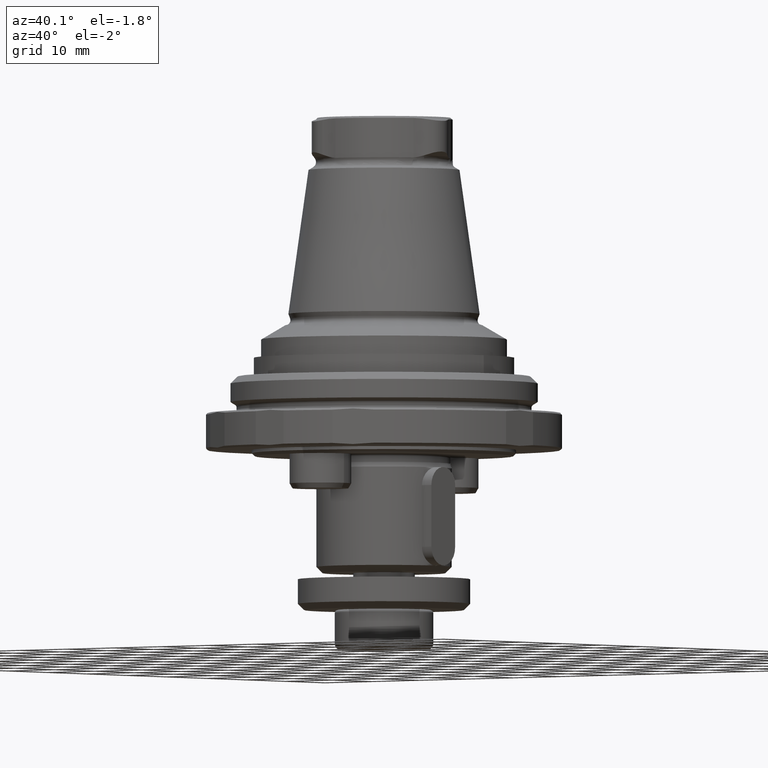
[diagram: clean part render]
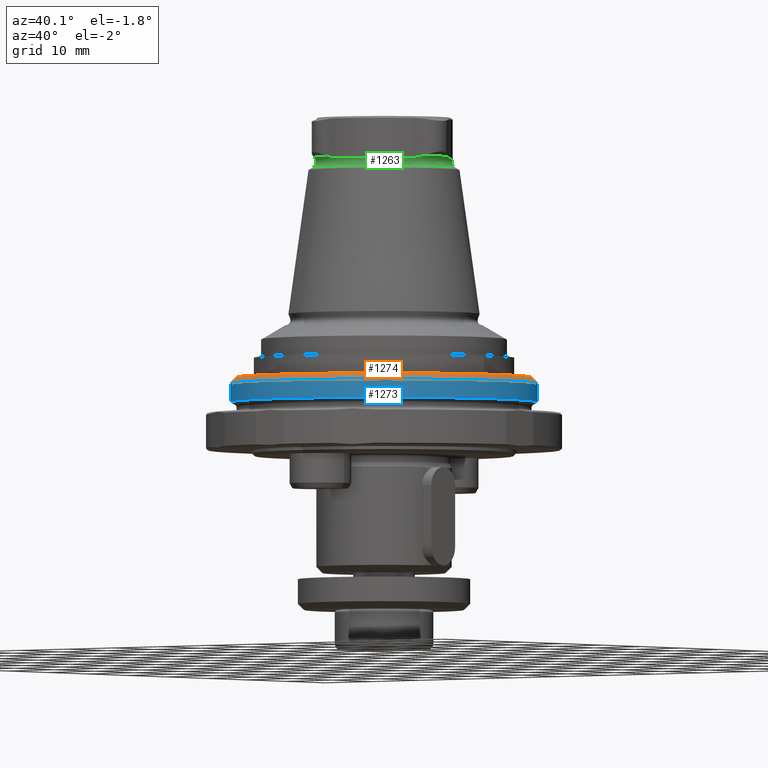
[diagram: same view with three faces highlighted in distinct colors, each labeled with its STEP entity id]
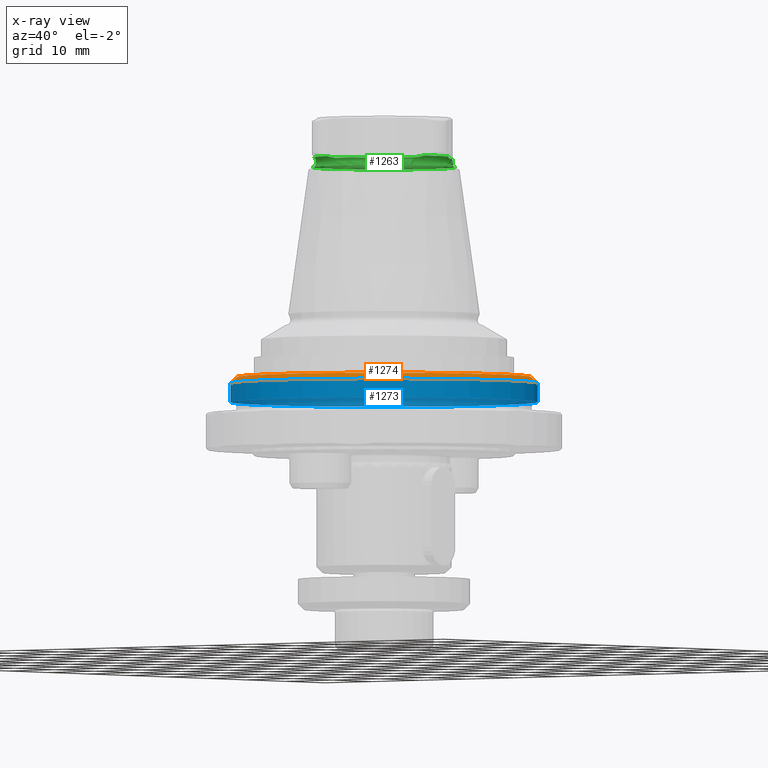
[diagram: x-ray of the same camera — body ghosted, the three highlighted faces saturated]
A machine part, auxiliary view with three faces highlighted in distinct colors.
The next image is the same camera in x-ray (body ghosted, the three faces saturated) — at least one of them is partly hidden behind the body in this view.
Their STEP definitions:

[orange] entity #1274 — the highlighted conical surface has half-angle 45 deg.
#198=CONICAL_SURFACE('',#1433,23.9757350979542,0.785398163397447);
#409=ORIENTED_EDGE('',*,*,#645,.F.);
#410=ORIENTED_EDGE('',*,*,#646,.T.);
#645=EDGE_CURVE('',#784,#784,#881,.T.);
#646=EDGE_CURVE('',#785,#785,#882,.T.);
#784=VERTEX_POINT('',#2226);
#785=VERTEX_POINT('',#2229);
#881=CIRCLE('',#1432,25.);
#882=CIRCLE('',#1434,23.9757350979542);
#998=EDGE_LOOP('',(#409));
#999=EDGE_LOOP('',(#410));
#1133=FACE_BOUND('',#998,.T.);
#1134=FACE_BOUND('',#999,.T.);
#1274=ADVANCED_FACE('',(#1133,#1134),#198,.T.);
#1432=AXIS2_PLACEMENT_3D('',#2225,#1745,#1746);
#1433=AXIS2_PLACEMENT_3D('',#2227,#1747,#1748);
#1434=AXIS2_PLACEMENT_3D('',#2228,#1749,#1750);
#1745=DIRECTION('',(1.22464605849178E-16,1.04225259501902E-17,-1.));
#1746=DIRECTION('',(-1.,-5.54667823983524E-32,-1.22464605849178E-16));
#1747=DIRECTION('',(1.22464605849178E-16,1.04225259501902E-17,-1.));
#1748=DIRECTION('',(-1.,-5.54667823983524E-32,-1.22464605849178E-16));
#1749=DIRECTION('',(1.22464605849178E-16,1.04225259501902E-17,-1.));
#1750=DIRECTION('',(-1.,-5.54667823983524E-32,-1.22464605849178E-16));
#2225=CARTESIAN_POINT('',(4.91211470789945E-15,4.37746089907996E-17,3.79999999999999));
#2226=CARTESIAN_POINT('',(-25.,4.37746089907982E-17,3.79999999999999));
#2227=CARTESIAN_POINT('',(4.78667851038526E-15,3.30991814693578E-17,4.82426490204583));
#2228=CARTESIAN_POINT('',(4.78667851038526E-15,3.30991814693578E-17,4.82426490204583));
#2229=CARTESIAN_POINT('',(-23.9757350979542,3.30991814693564E-17,4.82426490204583));

[blue] entity #1273 — the highlighted cylindrical surface (bore or boss wall) has radius 25 mm, axis along (0, 0, -1).
#407=ORIENTED_EDGE('',*,*,#644,.F.);
#408=ORIENTED_EDGE('',*,*,#645,.T.);
#644=EDGE_CURVE('',#783,#783,#880,.T.);
#645=EDGE_CURVE('',#784,#784,#881,.T.);
#783=VERTEX_POINT('',#2223);
#784=VERTEX_POINT('',#2226);
#880=CIRCLE('',#1430,25.);
#881=CIRCLE('',#1432,25.);
#996=EDGE_LOOP('',(#407));
#997=EDGE_LOOP('',(#408));
#1131=FACE_BOUND('',#996,.T.);
#1132=FACE_BOUND('',#997,.T.);
#1204=CYLINDRICAL_SURFACE('',#1431,25.);
#1273=ADVANCED_FACE('',(#1131,#1132),#1204,.T.);
#1430=AXIS2_PLACEMENT_3D('',#2222,#1741,#1742);
#1431=AXIS2_PLACEMENT_3D('',#2224,#1743,#1744);
#1432=AXIS2_PLACEMENT_3D('',#2225,#1745,#1746);
#1741=DIRECTION('',(1.22464605849178E-16,1.04225259501902E-17,-1.));
#1742=DIRECTION('',(-1.,-5.54667823983524E-32,-1.22464605849178E-16));
#1743=DIRECTION('',(1.22464605849178E-16,1.04225259501902E-17,-1.));
#1744=DIRECTION('',(-1.,-5.54667823983524E-32,-1.22464605849178E-16));
#1745=DIRECTION('',(1.22464605849178E-16,1.04225259501902E-17,-1.));
#1746=DIRECTION('',(-1.,-5.54667823983524E-32,-1.22464605849178E-16));
#2222=CARTESIAN_POINT('',(5.27950852544698E-15,7.50421868413704E-17,0.799999999999982));
#2223=CARTESIAN_POINT('',(-25.,7.5042186841369E-17,0.799999999999979));
#2224=CARTESIAN_POINT('',(5.4999448159755E-15,9.38027335517129E-17,-1.00000000000002));
#2225=CARTESIAN_POINT('',(4.91211470789945E-15,4.37746089907996E-17,3.79999999999999));
#2226=CARTESIAN_POINT('',(-25.,4.37746089907982E-17,3.79999999999999));

[green] entity #1263 — the highlighted toroidal blend (fillet) surface has major radius 12.05 mm and minor (blend) radius 1 mm.
#37=B_SPLINE_CURVE_WITH_KNOTS('',3,(#2116,#2117,#2118,#2119),
 .UNSPECIFIED.,.F.,.F.,(4,4),(8.50890922870744E-7,0.00179869095250344),
 .UNSPECIFIED.);
#39=B_SPLINE_CURVE_WITH_KNOTS('',3,(#2130,#2131,#2132,#2133),
 .UNSPECIFIED.,.F.,.F.,(4,4),(1.97014138844216E-7,0.00179803707563465),
 .UNSPECIFIED.);
#41=B_SPLINE_CURVE_WITH_KNOTS('',3,(#2144,#2145,#2146,#2147),
 .UNSPECIFIED.,.F.,.F.,(4,4),(8.50891091952298E-7,0.00179869095262926),
 .UNSPECIFIED.);
#43=B_SPLINE_CURVE_WITH_KNOTS('',3,(#2158,#2159,#2160,#2161),
 .UNSPECIFIED.,.F.,.F.,(4,4),(2.15734678292797E-7,0.00179805579621476),
 .UNSPECIFIED.);
#45=B_SPLINE_CURVE_WITH_KNOTS('',3,(#2172,#2173,#2174,#2175),
 .UNSPECIFIED.,.F.,.F.,(4,4),(8.5089122328457E-7,0.00179869095271709),
 .UNSPECIFIED.);
#47=B_SPLINE_CURVE_WITH_KNOTS('',3,(#2186,#2187,#2188,#2189),
 .UNSPECIFIED.,.F.,.F.,(4,4),(2.40605450742352E-7,0.00179808066703067),
 .UNSPECIFIED.);
#177=TOROIDAL_SURFACE('',#1410,12.05,1.);
#376=ORIENTED_EDGE('',*,*,#634,.F.);
#377=ORIENTED_EDGE('',*,*,#633,.T.);
#378=ORIENTED_EDGE('',*,*,#632,.T.);
#379=ORIENTED_EDGE('',*,*,#629,.T.);
#380=ORIENTED_EDGE('',*,*,#628,.T.);
#381=ORIENTED_EDGE('',*,*,#626,.T.);
#382=ORIENTED_EDGE('',*,*,#624,.T.);
#383=ORIENTED_EDGE('',*,*,#621,.T.);
#384=ORIENTED_EDGE('',*,*,#620,.T.);
#385=ORIENTED_EDGE('',*,*,#618,.T.);
#386=ORIENTED_EDGE('',*,*,#616,.T.);
#387=ORIENTED_EDGE('',*,*,#613,.T.);
#388=ORIENTED_EDGE('',*,*,#612,.T.);
#612=EDGE_CURVE('',#761,#762,#37,.T.);
#613=EDGE_CURVE('',#763,#761,#864,.T.);
#616=EDGE_CURVE('',#764,#763,#39,.T.);
#618=EDGE_CURVE('',#765,#764,#865,.T.);
#620=EDGE_CURVE('',#766,#765,#41,.T.);
#621=EDGE_CURVE('',#767,#766,#866,.T.);
#624=EDGE_CURVE('',#768,#767,#43,.T.);
#626=EDGE_CURVE('',#769,#768,#867,.T.);
#628=EDGE_CURVE('',#770,#769,#45,.T.);
#629=EDGE_CURVE('',#771,#770,#868,.T.);
#632=EDGE_CURVE('',#772,#771,#47,.T.);
#633=EDGE_CURVE('',#762,#772,#869,.T.);
#634=EDGE_CURVE('',#773,#773,#870,.T.);
#761=VERTEX_POINT('',#2113);
#762=VERTEX_POINT('',#2115);
#763=VERTEX_POINT('',#2122);
#764=VERTEX_POINT('',#2129);
#765=VERTEX_POINT('',#2136);
#766=VERTEX_POINT('',#2143);
#767=VERTEX_POINT('',#2150);
#768=VERTEX_POINT('',#2157);
#769=VERTEX_POINT('',#2164);
#770=VERTEX_POINT('',#2171);
#771=VERTEX_POINT('',#2178);
#772=VERTEX_POINT('',#2185);
#773=VERTEX_POINT('',#2194);
#864=CIRCLE('',#1394,11.4072123903135);
#865=CIRCLE('',#1397,11.15);
#866=CIRCLE('',#1400,11.4072123903135);
#867=CIRCLE('',#1403,11.15);
#868=CIRCLE('',#1406,11.4072123903135);
#869=CIRCLE('',#1409,11.15);
#870=CIRCLE('',#1411,11.55);
#976=EDGE_LOOP('',(#376));
#977=EDGE_LOOP('',(#377,#378,#379,#380,#381,#382,#383,#384,#385,#386,#387,
#388));
#1111=FACE_BOUND('',#976,.T.);
#1112=FACE_BOUND('',#977,.T.);
#1263=ADVANCED_FACE('',(#1111,#1112),#177,.F.);
#1394=AXIS2_PLACEMENT_3D('',#2121,#1664,#1665);
#1397=AXIS2_PLACEMENT_3D('',#2137,#1672,#1673);
#1400=AXIS2_PLACEMENT_3D('',#2149,#1678,#1679);
#1403=AXIS2_PLACEMENT_3D('',#2165,#1686,#1687);
#1406=AXIS2_PLACEMENT_3D('',#2177,#1692,#1693);
#1409=AXIS2_PLACEMENT_3D('',#2191,#1699,#1700);
#1410=AXIS2_PLACEMENT_3D('',#2192,#1701,#1702);
#1411=AXIS2_PLACEMENT_3D('',#2193,#1703,#1704);
#1664=DIRECTION('',(2.49783760049311E-16,-7.79579225983866E-33,-1.));
#1665=DIRECTION('',(-1.,6.12303176911188E-17,-2.4978376004931E-16));
#1672=DIRECTION('',(2.49783760049311E-16,-7.79579225983866E-33,-1.));
#1673=DIRECTION('',(-1.,6.12303176911188E-17,-2.4978376004931E-16));
#1678=DIRECTION('',(2.49783760049311E-16,-7.79579225983866E-33,-1.));
#1679=DIRECTION('',(-1.,6.12303176911188E-17,-2.4978376004931E-16));
#1686=DIRECTION('',(2.49783760049311E-16,-7.79579225983866E-33,-1.));
#1687=DIRECTION('',(-1.,6.12303176911188E-17,-2.4978376004931E-16));
#1692=DIRECTION('',(2.49783760049311E-16,-7.79579225983866E-33,-1.));
#1693=DIRECTION('',(-1.,6.12303176911188E-17,-2.4978376004931E-16));
#1699=DIRECTION('',(2.49783760049311E-16,-7.79579225983866E-33,-1.));
#1700=DIRECTION('',(-1.,6.12303176911188E-17,-2.4978376004931E-16));
#1701=DIRECTION('',(2.49783760049311E-16,-7.79579225983866E-33,-1.));
#1702=DIRECTION('',(-1.,6.12303176911188E-17,-2.4978376004931E-16));
#1703=DIRECTION('',(2.49783760049311E-16,-7.79579225983866E-33,-1.));
#1704=DIRECTION('',(-1.,6.12303176911188E-17,-2.4978376004931E-16));
#2113=CARTESIAN_POINT('',(-8.16631301184023,-7.96466109199695,40.5971607155419));
#2115=CARTESIAN_POINT('',(-9.08956477504308,-6.45773274457035,40.2670061667781));
#2116=CARTESIAN_POINT('',(-8.16631301184022,-7.96466109199695,40.5971607155419));
#2117=CARTESIAN_POINT('',(-8.43716773628233,-7.44650007144285,40.4562890177723));
#2118=CARTESIAN_POINT('',(-8.73565666774484,-6.95587517209814,40.267006166778));
#2119=CARTESIAN_POINT('',(-9.0895647750435,-6.45773274457063,40.267006166778));
#2121=CARTESIAN_POINT('',(-3.74447800712683E-15,7.28853093335038E-31,40.5971607155419));
#2122=CARTESIAN_POINT('',(-2.81444233228352,-11.0545650695073,40.5971607155419));
#2129=CARTESIAN_POINT('',(-1.04777822012703,-11.100660376817,40.2670061667769));
#2130=CARTESIAN_POINT('',(-1.0477782201269,-11.100660376817,40.2670061667776));
#2131=CARTESIAN_POINT('',(-1.65613685629354,-11.043238123783,40.2670061667776));
#2132=CARTESIAN_POINT('',(-2.23027456652951,-11.0300516398724,40.4562890668505));
#2133=CARTESIAN_POINT('',(-2.81444233228352,-11.0545650695073,40.5971607155419));
#2136=CARTESIAN_POINT('',(10.1373429951703,-4.64292763224633,40.2670061667778));
#2137=CARTESIAN_POINT('',(-2.90420136540203E-15,6.79878366923218E-31,40.267006166777));
#2143=CARTESIAN_POINT('',(10.9807553441231,-3.08990397751001,40.5971607155419));
#2144=CARTESIAN_POINT('',(10.9807553441231,-3.08990397751001,40.5971607155419));
#2145=CARTESIAN_POINT('',(10.6674421615715,-3.58355146176541,40.4562890457737));
#2146=CARTESIAN_POINT('',(10.3917930782019,-4.0873627018511,40.2670061667778));
#2147=CARTESIAN_POINT('',(10.1373429951705,-4.6429276322464,40.2670061667778));
#2149=CARTESIAN_POINT('',(-3.74447800712683E-15,7.28853093335038E-31,40.5971607155419));
#2150=CARTESIAN_POINT('',(10.9807553441229,3.08990397751094,40.5971607155419));
#2157=CARTESIAN_POINT('',(10.1373429951706,4.64292763224664,40.2670061667782));
#2158=CARTESIAN_POINT('',(10.1373429951706,4.64292763224665,40.2670061667782));
#2159=CARTESIAN_POINT('',(10.391793078202,4.08736270185151,40.2670061667782));
#2160=CARTESIAN_POINT('',(10.6674421615714,3.58355146176609,40.4562890457739));
#2161=CARTESIAN_POINT('',(10.9807553441229,3.08990397751094,40.5971607155419));
#2164=CARTESIAN_POINT('',(-1.04777822012694,11.1006603768167,40.2670061667788));
#2165=CARTESIAN_POINT('',(-2.90420136540203E-15,6.79878366923218E-31,40.267006166777));
#2171=CARTESIAN_POINT('',(-2.81444233228175,11.0545650695078,40.5971607155419));
#2172=CARTESIAN_POINT('',(-2.81444233228175,11.0545650695078,40.5971607155419));
#2173=CARTESIAN_POINT('',(-2.23027456652832,11.0300516398729,40.4562890668507));
#2174=CARTESIAN_POINT('',(-1.65613685629275,11.0432381237836,40.2670061667787));
#2175=CARTESIAN_POINT('',(-1.04777822012697,11.1006603768175,40.2670061667787));
#2177=CARTESIAN_POINT('',(-3.74447800712683E-15,7.28853093335038E-31,40.5971607155419));
#2178=CARTESIAN_POINT('',(-8.16631301184082,7.96466109199635,40.5971607155419));
#2185=CARTESIAN_POINT('',(-9.08956477504374,6.45773274457082,40.2670061667769));
#2186=CARTESIAN_POINT('',(-9.08956477504393,6.45773274457056,40.2670061667786));
#2187=CARTESIAN_POINT('',(-8.73565666774529,6.95587517209798,40.2670061667785));
#2188=CARTESIAN_POINT('',(-8.43716773628286,7.44650007144248,40.4562890177725));
#2189=CARTESIAN_POINT('',(-8.16631301184082,7.96466109199635,40.5971607155419));
#2191=CARTESIAN_POINT('',(-2.90420136540203E-15,6.79878366923218E-31,40.267006166777));
#2192=CARTESIAN_POINT('',(-2.79532314862278E-15,6.7648025985867E-31,39.8311162724229));
#2193=CARTESIAN_POINT('',(-3.33681346410419E-15,7.16129815855033E-31,38.9650908686385));
#2194=CARTESIAN_POINT('',(-11.55,7.07210169332423E-16,38.9650908686385));